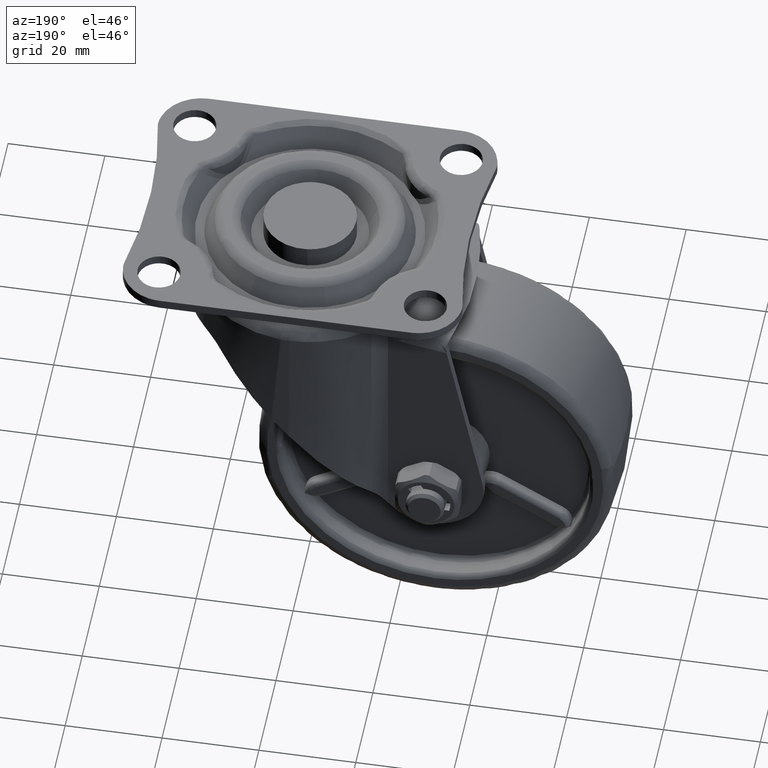
[diagram: clean part render]
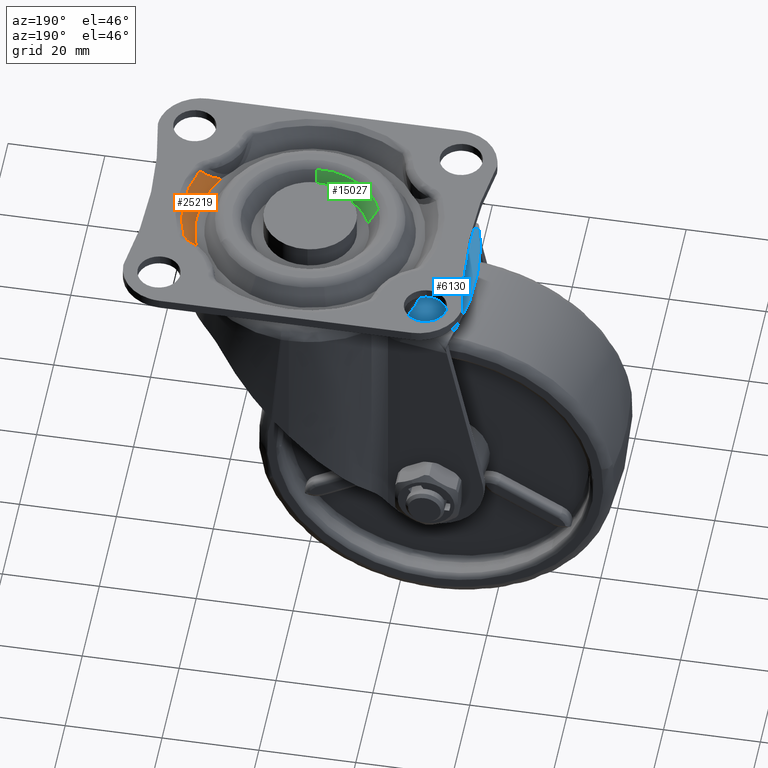
[diagram: same view with three faces highlighted in distinct colors, each labeled with its STEP entity id]
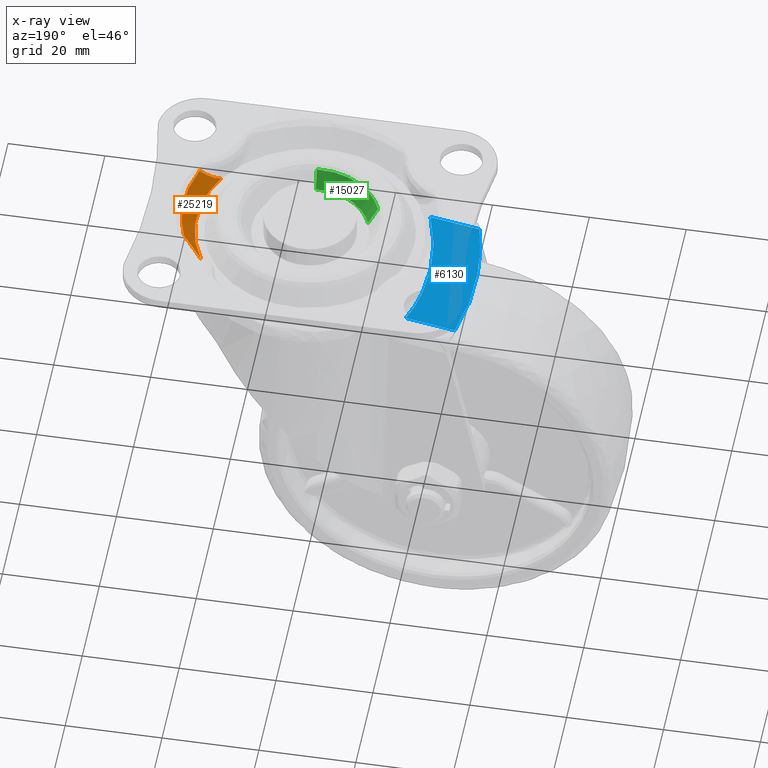
[diagram: x-ray of the same camera — body ghosted, the three highlighted faces saturated]
A machine part, auxiliary view with three faces highlighted in distinct colors.
The next image is the same camera in x-ray (body ghosted, the three faces saturated) — at least one of them is partly hidden behind the body in this view.
Their STEP definitions:

[orange] entity #25219 — the highlighted face is a freeform B-spline surface patch.
#24160=CARTESIAN_POINT('',(24.416023578604349,-9.269562236269580,-0.681546433358109));
#24161=VERTEX_POINT('',#24160);
#24449=CARTESIAN_POINT('',(24.416023578604349,9.269562236269591,-0.681546433358109));
#24450=VERTEX_POINT('',#24449);
#24464=CARTESIAN_POINT('',(24.416023578604381,-9.269562236269609,-0.681546433358108));
#24465=CARTESIAN_POINT('',(27.935220051177033,-1.074141E-014,-0.681546433358108));
#24466=CARTESIAN_POINT('',(24.416023578604371,9.269562236269589,-0.681546433358108));
#24474=(BOUNDED_CURVE()B_SPLINE_CURVE(2,(#24464,#24465,#24466),.UNSPECIFIED.,.F.,.U.)CURVE()GEOMETRIC_REPRESENTATION_ITEM()QUASI_UNIFORM_CURVE()RATIONAL_B_SPLINE_CURVE((1.0,0.934891948319267,1.0))REPRESENTATION_ITEM(''));
#24475=EDGE_CURVE('',#24161,#24450,#24474,.T.);
#24574=CARTESIAN_POINT('',(20.408419363974598,-11.651026524051341,-4.700000999999900));
#24575=VERTEX_POINT('',#24574);
#24619=CARTESIAN_POINT('',(20.408419363974598,-11.651026524051341,-4.700000999999910));
#24620=CARTESIAN_POINT('',(20.496104386634592,-11.576398107751240,-4.639872557719019));
#24621=CARTESIAN_POINT('',(20.583630656202612,-11.503717806673199,-4.577324188927590));
#24622=CARTESIAN_POINT('',(20.758420424797261,-11.361990634323080,-4.447759890940754));
#24623=CARTESIAN_POINT('',(20.845743598852192,-11.292900607465951,-4.380692698001186));
#24624=CARTESIAN_POINT('',(21.106371535293210,-11.091514999446179,-4.174107723161582));
#24625=CARTESIAN_POINT('',(21.278651773882299,-10.964821704559730,-4.029009849274170));
#24626=CARTESIAN_POINT('',(21.620945838856809,-10.724474313971671,-3.726400916191483));
#24627=CARTESIAN_POINT('',(21.790957833837680,-10.610827266407259,-3.568882475653598));
#24628=CARTESIAN_POINT('',(22.044667873873141,-10.448986594608330,-3.324601964374101));
#24629=CARTESIAN_POINT('',(22.129018891356829,-10.396481578063080,-3.241837505268498));
#24630=CARTESIAN_POINT('',(22.297338228311929,-10.294198725045160,-3.073813496126086));
#24631=CARTESIAN_POINT('',(22.381379433297859,-10.244379388874540,-2.988477987780610));
#24632=CARTESIAN_POINT('',(22.799721025910060,-10.002349736384719,-2.557030185028888));
#24633=CARTESIAN_POINT('',(23.128317811540729,-9.831205450684518,-2.197021268292248));
#24634=CARTESIAN_POINT('',(23.777537338995881,-9.524760809478691,-1.454836042912328));
#24635=CARTESIAN_POINT('',(24.098128721963700,-9.389536026778453,-1.072600169826990));
#24636=CARTESIAN_POINT('',(24.416023578604349,-9.269562236269580,-0.681546433358109));
#24637=B_SPLINE_CURVE_WITH_KNOTS('',3,(#24619,#24620,#24621,#24622,#24623,#24624,#24625,#24626,#24627,#24628,#24629,#24630,#24631,#24632,#24633,#24634,#24635,#24636),.UNSPECIFIED.,.F.,.U.,(4,2,2,2,2,2,2,2,4),(0.0,0.062500000000000,0.124999999999999,0.249999999999999,0.374999999999999,0.437499999999999,0.499999999999999,0.749999999999999,1.0),.UNSPECIFIED.);
#24638=EDGE_CURVE('',#24575,#24161,#24637,.T.);
#24870=CARTESIAN_POINT('',(20.408419363974549,11.651026524051360,-4.700000999999900));
#24871=VERTEX_POINT('',#24870);
#24887=CARTESIAN_POINT('',(24.416023578604349,9.269562236269591,-0.681546433358109));
#24888=CARTESIAN_POINT('',(24.097862831226109,9.389636374170022,-1.072927251452422));
#24889=CARTESIAN_POINT('',(23.777225794688849,9.524905392795318,-1.455194624081873));
#24890=CARTESIAN_POINT('',(23.128480578429919,9.831131093860734,-2.196832768328873));
#24891=CARTESIAN_POINT('',(22.800400832488741,10.002017233880069,-2.556261118912818));
#24892=CARTESIAN_POINT('',(22.299765402013620,10.291566639978170,-3.072682640149436));
#24893=CARTESIAN_POINT('',(22.131454491142762,10.393651701560779,-3.241010031168808));
#24894=CARTESIAN_POINT('',(21.791245506818711,10.610617990521840,-3.568636143756810));
#24895=CARTESIAN_POINT('',(21.620530594978419,10.724748898272070,-3.726789432277999));
#24896=CARTESIAN_POINT('',(21.277548735612449,10.965613282323631,-4.029963492658748));
#24897=CARTESIAN_POINT('',(21.105267379005952,11.092351198008030,-4.175005505332470));
#24898=CARTESIAN_POINT('',(20.758593701486191,11.360257842503151,-4.449748805896046));
#24899=CARTESIAN_POINT('',(20.584203219681569,11.501417498877119,-4.579460352336755));
#24900=CARTESIAN_POINT('',(20.408419363974549,11.651026524051360,-4.700000999999900));
#24901=B_SPLINE_CURVE_WITH_KNOTS('',3,(#24887,#24888,#24889,#24890,#24891,#24892,#24893,#24894,#24895,#24896,#24897,#24898,#24899,#24900),.UNSPECIFIED.,.F.,.U.,(4,2,2,2,2,2,4),(0.0,0.250000000000000,0.499999999999999,0.624999999999999,0.750000000000000,0.875000000000000,1.0),.UNSPECIFIED.);
#24902=EDGE_CURVE('',#24450,#24871,#24901,.T.);
#25187=CARTESIAN_POINT('',(20.249449190615039,11.795753538120881,-4.800462364165946));
#25188=CARTESIAN_POINT('',(22.624701632960630,13.179390798422929,-0.578573535087911));
#25189=CARTESIAN_POINT('',(27.446737121453811,-0.559634847601855,-4.800462364165946));
#25190=CARTESIAN_POINT('',(30.666228613220692,-0.625279795574269,-0.578573535087911));
#25191=CARTESIAN_POINT('',(19.751791549767866,-12.611372828915602,-4.800462364165946));
#25192=CARTESIAN_POINT('',(22.068668946167922,-14.090681911905177,-0.578573535087911));
#25200=(BOUNDED_SURFACE()B_SPLINE_SURFACE(1,2,((#25187,#25189,#25191),(#25188,#25190,#25192)),.UNSPECIFIED.,.F.,.F.,.U.)B_SPLINE_SURFACE_WITH_KNOTS((2,2),(3,3),(0.0,5.037918371516039),(0.0,29.429330377818800),.UNSPECIFIED.)GEOMETRIC_REPRESENTATION_ITEM()RATIONAL_B_SPLINE_SURFACE(((1.0,0.853182116882323,0.998920081274572),(1.0,0.853182116882323,0.998920081274572)))REPRESENTATION_ITEM('')SURFACE());
#25201=ORIENTED_EDGE('',*,*,#24475,.T.);
#25202=ORIENTED_EDGE('',*,*,#24902,.T.);
#25203=CARTESIAN_POINT('',(20.408419363974549,11.651026524051360,-4.700000999999900));
#25204=CARTESIAN_POINT('',(27.059910429655567,2.568779E-014,-4.700000999999900));
#25205=CARTESIAN_POINT('',(20.408419363974581,-11.651026524051330,-4.700000999999900));
#25213=(BOUNDED_CURVE()B_SPLINE_CURVE(2,(#25203,#25204,#25205),.UNSPECIFIED.,.F.,.U.)CURVE()GEOMETRIC_REPRESENTATION_ITEM()QUASI_UNIFORM_CURVE()RATIONAL_B_SPLINE_CURVE((1.0,0.868443377190407,1.0))REPRESENTATION_ITEM(''));
#25214=EDGE_CURVE('',#24871,#24575,#25213,.T.);
#25215=ORIENTED_EDGE('',*,*,#25214,.T.);
#25216=ORIENTED_EDGE('',*,*,#24638,.T.);
#25217=EDGE_LOOP('',(#25201,#25202,#25215,#25216));
#25218=FACE_OUTER_BOUND('',#25217,.T.);
#25219=ADVANCED_FACE('',(#25218),#25200,.F.);

[blue] entity #6130 — the highlighted face is a freeform B-spline surface patch.
#4395=CARTESIAN_POINT('',(-22.292062245486250,-14.499999078087519,-11.172663872593700));
#4396=VERTEX_POINT('',#4395);
#4488=CARTESIAN_POINT('',(-32.450915157712551,-14.499999250190021,-12.963944379277860));
#4489=VERTEX_POINT('',#4488);
#4490=CARTESIAN_POINT('',(-32.450915157712551,-14.499999250189980,-12.963944379277880));
#4491=CARTESIAN_POINT('',(-30.153030422755059,-14.499999218223619,-12.558765172884261));
#4492=CARTESIAN_POINT('',(-27.855145689356000,-14.499999182399250,-12.153585957652369));
#4493=CARTESIAN_POINT('',(-25.557260958312352,-14.499999140985899,-11.748406729062260));
#4494=CARTESIAN_POINT('',(-24.468861386794028,-14.499999121370349,-11.556492446840929));
#4495=CARTESIAN_POINT('',(-23.380461815809792,-14.499999100490101,-11.364578161590700));
#4496=CARTESIAN_POINT('',(-22.292062245486200,-14.499999078087519,-11.172663872593681));
#4497=B_SPLINE_CURVE_WITH_KNOTS('',3,(#4490,#4491,#4492,#4493,#4494,#4495,#4496),.UNSPECIFIED.,.F.,.U.,(4,3,4),(6.938894E-018,0.007000000000000,0.010315569705347),.UNSPECIFIED.);
#4498=EDGE_CURVE('',#4489,#4396,#4497,.T.);
#4550=CARTESIAN_POINT('',(-22.292062245486250,14.499999078087500,-11.172663872593700));
#4551=VERTEX_POINT('',#4550);
#4593=CARTESIAN_POINT('',(-32.450915157712551,14.499999250189999,-12.963944379277860));
#4594=VERTEX_POINT('',#4593);
#4622=CARTESIAN_POINT('',(-22.292062245486250,14.499999078087519,-11.172663872593700));
#4623=CARTESIAN_POINT('',(-24.589946974007511,14.499999125384980,-11.577843115488990));
#4624=CARTESIAN_POINT('',(-26.887831705435168,14.499999165962830,-11.983022341901220));
#4625=CARTESIAN_POINT('',(-29.185716438736350,14.499999201974379,-12.388201557688239));
#4626=CARTESIAN_POINT('',(-30.274116011323951,14.499999219031359,-12.580115833845349));
#4627=CARTESIAN_POINT('',(-31.362515584340471,14.499999235049030,-12.772030107569980));
#4628=CARTESIAN_POINT('',(-32.450915157712593,14.499999250189980,-12.963944379277880));
#4629=B_SPLINE_CURVE_WITH_KNOTS('',3,(#4622,#4623,#4624,#4625,#4626,#4627,#4628),.UNSPECIFIED.,.F.,.U.,(4,3,4),(0.0,0.007000000000000,0.010315569705347),.UNSPECIFIED.);
#4630=EDGE_CURVE('',#4551,#4594,#4629,.T.);
#4987=CARTESIAN_POINT('',(-22.292062245486228,-14.499999078087511,-11.172663872593700));
#4988=CARTESIAN_POINT('',(-22.715182670217938,-13.334485344932361,-11.247271761994270));
#4989=CARTESIAN_POINT('',(-23.083615225142641,-12.154830772254490,-11.312236661631310));
#4990=CARTESIAN_POINT('',(-23.715079398216329,-9.769507877234013,-11.423581347540750));
#4991=CARTESIAN_POINT('',(-23.978161717245190,-8.563641671114029,-11.469970073796651));
#4992=CARTESIAN_POINT('',(-24.241808207841260,-7.039954902372123,-11.516458279502180));
#4993=CARTESIAN_POINT('',(-24.291269448910580,-6.734397907690858,-11.525179671354280));
#4994=CARTESIAN_POINT('',(-24.383640269665701,-6.121640737144983,-11.541467215046961));
#4995=CARTESIAN_POINT('',(-24.426580750096161,-5.814195335191292,-11.549038815547920));
#4996=CARTESIAN_POINT('',(-24.545313682444299,-4.891119236078438,-11.569974732483390));
#4997=CARTESIAN_POINT('',(-24.610859595175029,-4.276220295133071,-11.581532299223790));
#4998=CARTESIAN_POINT('',(-24.767584833695700,-2.432946208894565,-11.609167316140240));
#4999=CARTESIAN_POINT('',(-24.818945737035168,-1.205990446685652,-11.618223671425771));
#5000=CARTESIAN_POINT('',(-24.817863311533149,1.244220831408550,-11.618032809714689));
#5001=CARTESIAN_POINT('',(-24.765415528796112,2.467476188528541,-11.608784807372970));
#5002=CARTESIAN_POINT('',(-24.556165667204819,4.910267048651864,-11.571888239091820));
#5003=CARTESIAN_POINT('',(-24.399374646406699,6.129802945834986,-11.544241622992260));
#5004=CARTESIAN_POINT('',(-24.135916003895950,7.651817760026059,-11.497786540127020));
#5005=CARTESIAN_POINT('',(-24.079842674973289,7.956100181011212,-11.487899253412150));
#5006=CARTESIAN_POINT('',(-23.960842295522689,8.564420712536878,-11.466916178389630));
#5007=CARTESIAN_POINT('',(-23.897888836621132,8.868539569124803,-11.455815733551690));
#5008=CARTESIAN_POINT('',(-23.699499465683822,9.776600098848586,-11.420834172567391));
#5009=CARTESIAN_POINT('',(-23.554299971892959,10.377544290532130,-11.395231465647701));
#5010=CARTESIAN_POINT('',(-23.079984461998212,12.167123540459020,-11.311596457173460));
#5011=CARTESIAN_POINT('',(-22.712257931561769,13.342541734722090,-11.246756049290671));
#5012=CARTESIAN_POINT('',(-22.292062245486228,14.499999078087489,-11.172663872593700));
#5013=B_SPLINE_CURVE_WITH_KNOTS('',3,(#4987,#4988,#4989,#4990,#4991,#4992,#4993,#4994,#4995,#4996,#4997,#4998,#4999,#5000,#5001,#5002,#5003,#5004,#5005,#5006,#5007,#5008,#5009,#5010,#5011,#5012),.UNSPECIFIED.,.F.,.U.,(4,2,2,2,2,2,2,2,2,2,2,2,4),(0.0,0.125000000000000,0.249999999999999,0.281249999999999,0.312499999999999,0.374999999999999,0.499999999999999,0.624999999999999,0.749999999999999,0.781249999999999,0.812499999999999,0.874999999999999,1.0),.UNSPECIFIED.);
#5014=EDGE_CURVE('',#4396,#4551,#5013,.T.);
#5112=CARTESIAN_POINT('',(-32.450915157712487,14.499999250189990,-12.963944379277880));
#5113=CARTESIAN_POINT('',(-32.741157363422332,13.314985772552070,-13.015122185169989));
#5114=CARTESIAN_POINT('',(-32.994893445173247,12.124914511713730,-13.059862942014631));
#5115=CARTESIAN_POINT('',(-33.430384096360093,9.734799228092113,-13.136652105024201));
#5116=CARTESIAN_POINT('',(-33.793890598610588,7.334710817231819,-13.200748452444101));
#5117=CARTESIAN_POINT('',(-34.013875751482473,4.914738074888776,-13.239537978106579));
#5118=CARTESIAN_POINT('',(-34.161527438756131,2.484743808824276,-13.265573093833559));
#5119=CARTESIAN_POINT('',(-34.199188392242910,1.264736169223244,-13.272213771639770));
#5120=CARTESIAN_POINT('',(-34.200381914027773,-0.572936602914524,-13.272424222860289));
#5121=CARTESIAN_POINT('',(-34.191556816277881,-1.186771996296201,-13.270868111680530));
#5122=CARTESIAN_POINT('',(-34.164290743228179,-2.109468670946493,-13.266060341579870));
#5123=CARTESIAN_POINT('',(-34.152866815772043,-2.417127351419386,-13.264045984149140));
#5124=CARTESIAN_POINT('',(-34.125415201949259,-3.031239670104782,-13.259205498029161));
#5125=CARTESIAN_POINT('',(-34.109381941618949,-3.337896801274997,-13.256378386494470));
#5126=CARTESIAN_POINT('',(-34.017739871512312,-4.869197951230075,-13.240219330375600));
#5127=CARTESIAN_POINT('',(-33.907736767897767,-6.087894161014035,-13.220822711308619));
#5128=CARTESIAN_POINT('',(-33.615388513826012,-8.512776462497962,-13.169273550150219));
#5129=CARTESIAN_POINT('',(-33.250695527002549,-10.925148181423371,-13.104967992366619));
#5130=CARTESIAN_POINT('',(-32.741748082000043,-13.312573961098360,-13.015226345351079));
#5131=CARTESIAN_POINT('',(-32.450915157712487,-14.499999250190010,-12.963944379277880));
#5132=B_SPLINE_CURVE_WITH_KNOTS('',3,(#5112,#5113,#5114,#5115,#5116,#5117,#5118,#5119,#5120,#5121,#5122,#5123,#5124,#5125,#5126,#5127,#5128,#5129,#5130,#5131),.UNSPECIFIED.,.F.,.U.,(4,2,1,2,2,2,2,2,2,1,4),(0.0,0.125000000000000,0.250000000000000,0.375000000000000,0.500000000000000,0.562500000000000,0.593750000000000,0.625000000000000,0.750000000000000,0.875000000000000,1.0),.UNSPECIFIED.);
#5133=EDGE_CURVE('',#4594,#4489,#5132,.T.);
#6119=CARTESIAN_POINT('',(-34.794796819107610,-15.948549119076381,-13.377243888807630));
#6120=CARTESIAN_POINT('',(-21.697261528120411,-15.948549119076381,-11.067784209726380));
#6121=CARTESIAN_POINT('',(-34.794796819107610,15.948549896916930,-13.377243888807630));
#6122=CARTESIAN_POINT('',(-21.697261528120411,15.948549896916930,-11.067784209726380));
#6123=B_SPLINE_SURFACE_WITH_KNOTS('',1,1,((#6119,#6121),(#6120,#6122)),.UNSPECIFIED.,.F.,.F.,.U.,(2,2),(2,2),(0.0,13.299587764587180),(0.0,31.897099015993309),.UNSPECIFIED.);
#6124=ORIENTED_EDGE('',*,*,#5014,.T.);
#6125=ORIENTED_EDGE('',*,*,#4630,.T.);
#6126=ORIENTED_EDGE('',*,*,#5133,.T.);
#6127=ORIENTED_EDGE('',*,*,#4498,.T.);
#6128=EDGE_LOOP('',(#6124,#6125,#6126,#6127));
#6129=FACE_OUTER_BOUND('',#6128,.T.);
#6130=ADVANCED_FACE('',(#6129),#6123,.T.);

[green] entity #15027 — the highlighted face is a freeform B-spline surface patch.
#14963=CARTESIAN_POINT('',(-11.108713707605942,-4.395180758829143,-4.792501025038300));
#14964=CARTESIAN_POINT('',(-7.861571194149056,-12.602255400145582,-4.792501025038300));
#14965=CARTESIAN_POINT('',(0.937319047446347,-11.909767719969540,-4.792501025038300));
#14966=CARTESIAN_POINT('',(-13.195647038281001,-5.220879346565903,-0.905187472799564));
#14967=CARTESIAN_POINT('',(-9.338481607756288,-14.969772245794090,-0.905187472799564));
#14968=CARTESIAN_POINT('',(1.113408054065813,-14.147190689866100,-0.905187472799565));
#14976=(BOUNDED_SURFACE()B_SPLINE_SURFACE(2,1,((#14963,#14966),(#14964,#14967),(#14965,#14968)),.UNSPECIFIED.,.F.,.F.,.U.)B_SPLINE_SURFACE_WITH_KNOTS((3,3),(2,2),(0.0,18.681640392904299),(0.0,4.488683051619029),.UNSPECIFIED.)GEOMETRIC_REPRESENTATION_ITEM()RATIONAL_B_SPLINE_SURFACE(((0.906274169979695,0.906274169979695),(0.765685424949238,0.765685424949238),(1.0,1.0)))REPRESENTATION_ITEM('')SURFACE());
#14977=CARTESIAN_POINT('',(0.941509148843479,-11.963008004800001,-4.700000999980796));
#14978=VERTEX_POINT('',#14977);
#14979=CARTESIAN_POINT('',(-11.158373037505241,-4.414828588146298,-4.700000977855792));
#14980=VERTEX_POINT('',#14979);
#14981=CARTESIAN_POINT('',(0.941509148843479,-11.963008004800002,-4.700000999980797));
#14982=CARTESIAN_POINT('',(0.471481284201013,-12.000000000000016,-4.700000999999899));
#14983=CARTESIAN_POINT('',(0.0,-12.000000000000011,-4.700000999999900));
#14984=CARTESIAN_POINT('',(-8.157287494380535,-12.000000000000012,-4.700000999999901));
#14985=CARTESIAN_POINT('',(-11.158373037505243,-4.414828588146298,-4.700000977855792));
#14993=(BOUNDED_CURVE()B_SPLINE_CURVE(2,(#14981,#14982,#14983,#14984,#14985),.UNSPECIFIED.,.F.,.U.)B_SPLINE_CURVE_WITH_KNOTS((3,2,3),(0.736331300629658,0.750000000000000,0.937532549106100),.UNSPECIFIED.)CURVE()GEOMETRIC_REPRESENTATION_ITEM()RATIONAL_B_SPLINE_CURVE((0.969723356165328,0.983986122577709,1.0,0.780291952240091,0.890203186524505))REPRESENTATION_ITEM(''));
#14994=EDGE_CURVE('',#14978,#14980,#14993,.T.);
#14995=ORIENTED_EDGE('',*,*,#14994,.T.);
#14996=CARTESIAN_POINT('',(-13.144746224502150,-5.200740356330829,-0.999999999994629));
#14997=VERTEX_POINT('',#14996);
#14998=CARTESIAN_POINT('',(-11.158373037505241,-4.414828588146298,-4.700000977855792));
#14999=CARTESIAN_POINT('',(-13.144746224502150,-5.200740356330829,-0.999999999994629));
#15000=QUASI_UNIFORM_CURVE('',1,(#14998,#14999),.UNSPECIFIED.,.F.,.U.);
#15001=EDGE_CURVE('',#14980,#14997,#15000,.T.);
#15002=ORIENTED_EDGE('',*,*,#15001,.T.);
#15003=CARTESIAN_POINT('',(1.109113200234983,-14.092619397034630,-0.999999999989698));
#15004=VERTEX_POINT('',#15003);
#15005=CARTESIAN_POINT('',(1.109113200234983,-14.092619397034635,-0.999999999989698));
#15006=CARTESIAN_POINT('',(0.555412676106989,-14.136196573351834,-1.0));
#15007=CARTESIAN_POINT('',(0.0,-14.136196573351841,-1.0));
#15008=CARTESIAN_POINT('',(-9.609418348497343,-14.136196573351835,-1.0));
#15009=CARTESIAN_POINT('',(-13.144746224502150,-5.200740356330829,-0.999999999994629));
#15017=(BOUNDED_CURVE()B_SPLINE_CURVE(2,(#15005,#15006,#15007,#15008,#15009),.UNSPECIFIED.,.F.,.U.)B_SPLINE_CURVE_WITH_KNOTS((3,2,3),(0.736331300631349,0.750000000000000,0.937532549938628),.UNSPECIFIED.)CURVE()GEOMETRIC_REPRESENTATION_ITEM()RATIONAL_B_SPLINE_CURVE((0.969723356168857,0.983986122579690,1.0,0.780291951264723,0.890203187500381))REPRESENTATION_ITEM(''));
#15018=EDGE_CURVE('',#15004,#14997,#15017,.T.);
#15019=ORIENTED_EDGE('',*,*,#15018,.F.);
#15020=CARTESIAN_POINT('',(0.941509148843479,-11.963008004800001,-4.700000999980796));
#15021=CARTESIAN_POINT('',(1.109113200234983,-14.092619397034630,-0.999999999989698));
#15022=QUASI_UNIFORM_CURVE('',1,(#15020,#15021),.UNSPECIFIED.,.F.,.U.);
#15023=EDGE_CURVE('',#14978,#15004,#15022,.T.);
#15024=ORIENTED_EDGE('',*,*,#15023,.F.);
#15025=EDGE_LOOP('',(#14995,#15002,#15019,#15024));
#15026=FACE_OUTER_BOUND('',#15025,.T.);
#15027=ADVANCED_FACE('',(#15026),#14976,.F.);